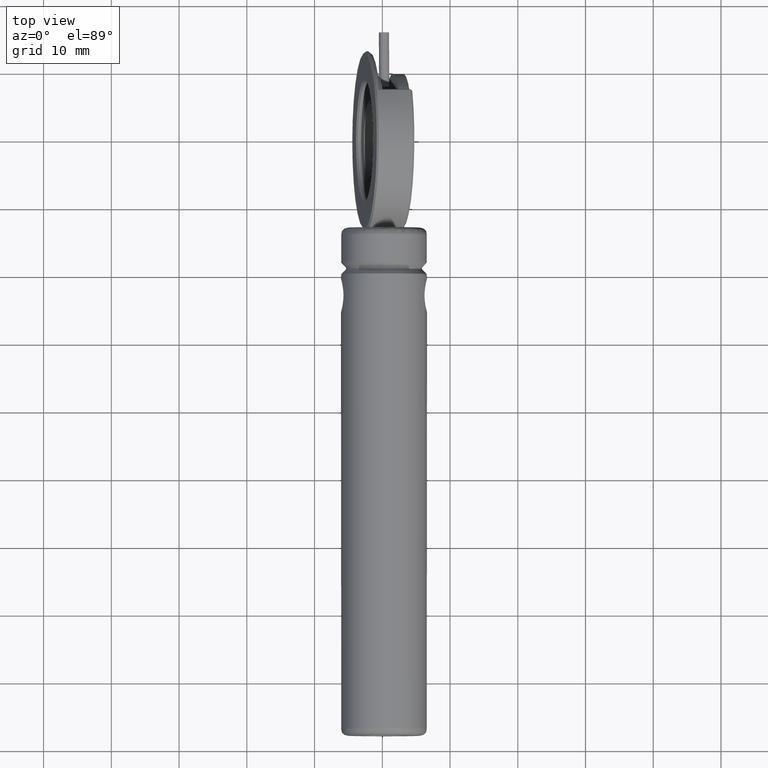
[diagram: clean part render]
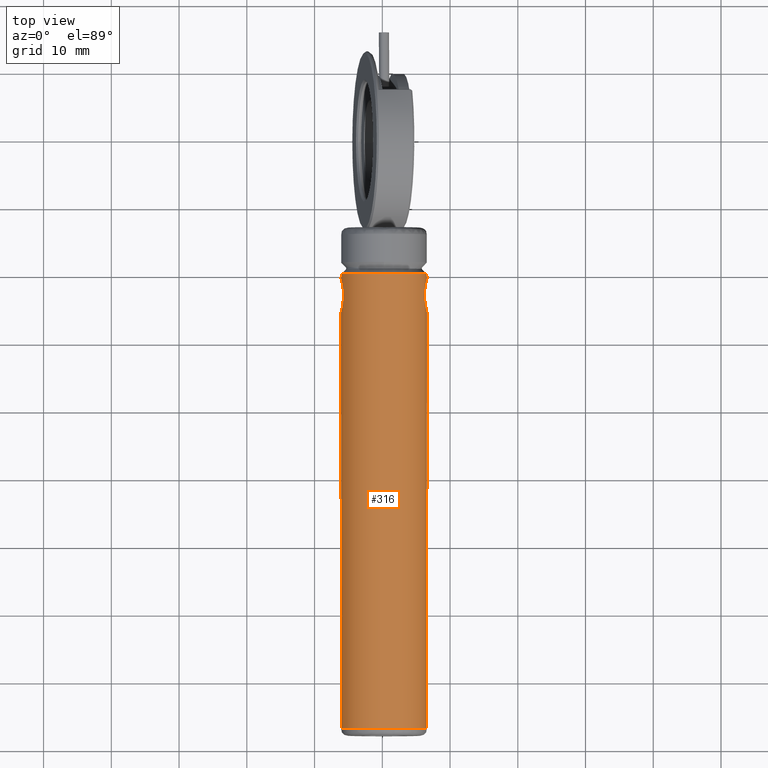
[diagram: same view with one face highlighted and labeled with its STEP entity id]
A machine part, top view. The second image highlights one B-rep face of the part: STEP entity #316.
In plain terms, the highlighted cylindrical surface (bore or boss wall) has radius 6.35 mm, axis along (-0, -1, -0).
Its self-contained STEP definition (entity closure, byte-faithful):
#19 = CARTESIAN_POINT ( 'NONE',  ( -55.95349770370444986, 29.02210091390551483, 19.38694243757856839 ) ) ;
#31 = VERTEX_POINT ( 'NONE', #1717 ) ;
#32 = ORIENTED_EDGE ( 'NONE', *, *, #687, .T. ) ;
#33 = CARTESIAN_POINT ( 'NONE',  ( -55.74895415253023145, 27.70177535754417875, 15.94214572811070418 ) ) ;
#40 = CARTESIAN_POINT ( 'NONE',  ( -56.05692047389217691, 24.75102878761379088, 18.77604103011382364 ) ) ;
#43 = CARTESIAN_POINT ( 'NONE',  ( -56.00013771908889737, 29.22252285189845011, 16.87280798669142357 ) ) ;
#76 = CARTESIAN_POINT ( 'NONE',  ( -43.54551270841827915, 25.16629738908881464, 19.38360610474585499 ) ) ;
#87 = CARTESIAN_POINT ( 'NONE',  ( -43.42560600130851611, 24.68812170509847448, 18.61633952175062490 ) ) ;
#98 = CARTESIAN_POINT ( 'NONE',  ( -43.64436787658748784, 28.54310485093863292, 19.78204878029966096 ) ) ;
#106 = CARTESIAN_POINT ( 'NONE',  ( -43.47795708950794591, 24.88573303829304351, 19.02841700811105596 ) ) ;
#108 = EDGE_CURVE ( 'NONE', #31, #31, #1231, .T. ) ;
#116 = AXIS2_PLACEMENT_3D ( 'NONE', #1961, #1060, #713 ) ;
#138 = VERTEX_POINT ( 'NONE', #765 ) ;
#162 = CARTESIAN_POINT ( 'NONE',  ( -55.99959699816394476, 29.21802960642397906, 19.15645675958402805 ) ) ;
#176 = CARTESIAN_POINT ( 'NONE',  ( -56.07379909883149338, 24.68935087469255407, 17.43265841121611714 ) ) ;
#188 = CARTESIAN_POINT ( 'NONE',  ( -56.00013771909167559, 24.96910962607035600, 19.17980413544104934 ) ) ;
#191 = CARTESIAN_POINT ( 'NONE',  ( -56.02121260531584568, 29.30365412800964720, 19.03198726080997716 ) ) ;
#197 = CARTESIAN_POINT ( 'NONE',  ( -55.85794606437300303, 25.63422731160354928, 16.27955899145761620 ) ) ;
#225 = CARTESIAN_POINT ( 'NONE',  ( -49.74987127643542806, 30.24581623896437677, 11.67630606107413804 ) ) ;
#231 = CARTESIAN_POINT ( 'NONE',  ( -43.76831793646814361, 26.78881061593457602, 15.89475272110675519 ) ) ;
#241 = CARTESIAN_POINT ( 'NONE',  ( -43.68628291746190229, 25.90218915304317093, 19.91460003448241167 ) ) ;
#244 = VERTEX_POINT ( 'NONE', #1154 ) ;
#275 = EDGE_LOOP ( 'NONE', ( #962 ) ) ;
#300 = CARTESIAN_POINT ( 'NONE',  ( -55.75280462891173983, 27.70452716160135864, 20.09704371819412216 ) ) ;
#316 = ADVANCED_FACE ( 'NONE', ( #354, #1380, #502, #1220 ), #346, .T. ) ;
#319 = CARTESIAN_POINT ( 'NONE',  ( -55.73142461640270540, 27.24973342325418102, 20.15785940104151663 ) ) ;
#339 = CARTESIAN_POINT ( 'NONE',  ( -55.92901312278439718, 25.28004879653650150, 16.56001592001667078 ) ) ;
#342 = CARTESIAN_POINT ( 'NONE',  ( -55.73142461636008704, 27.09581623896437108, 15.89475272114938065 ) ) ;
#346 = CYLINDRICAL_SURFACE ( 'NONE', #1733, 6.349999999999999645 ) ;
#354 = FACE_OUTER_BOUND ( 'NONE', #667, .T. ) ;
#367 = CARTESIAN_POINT ( 'NONE',  ( -43.42776622060254255, 29.49563133540271664, 18.63893529669634930 ) ) ;
#389 = CARTESIAN_POINT ( 'NONE',  ( -43.42767118592843900, 24.69565476322318887, 17.41471686030209298 ) ) ;
#410 = CARTESIAN_POINT ( 'NONE',  ( -43.49982703272948470, 29.21932615212613982, 16.89789884372426698 ) ) ;
#436 = CIRCLE ( 'NONE', #1227, 6.349999999999999645 ) ;
#458 = ORIENTED_EDGE ( 'NONE', *, *, #947, .T. ) ;
#466 = CARTESIAN_POINT ( 'NONE',  ( -55.81225704469007098, 28.28190471860009225, 16.13416482833923737 ) ) ;
#483 = CARTESIAN_POINT ( 'NONE',  ( -55.73142461640662759, 26.78853469835665280, 20.15785940103056362 ) ) ;
#498 = CARTESIAN_POINT ( 'NONE',  ( -55.81273324565979266, 28.28452125253767946, 19.91690377511365995 ) ) ;
#502 = FACE_BOUND ( 'NONE', #275, .T. ) ;
#504 = CARTESIAN_POINT ( 'NONE',  ( -55.73142461640659917, 26.94189905467674606, 15.89475272111770465 ) ) ;
#521 = CARTESIAN_POINT ( 'NONE',  ( -43.68762434279800999, 25.91075368746201235, 16.13372989938962121 ) ) ;
#533 = CARTESIAN_POINT ( 'NONE',  ( -43.64379427781811671, 25.64531726924878896, 16.27255785902384844 ) ) ;
#543 = CARTESIAN_POINT ( 'NONE',  ( -43.39960561069114675, 29.59675670764408650, 17.88575128877421605 ) ) ;
#545 = EDGE_CURVE ( 'NONE', #983, #983, #1766, .T. ) ;
#551 = CARTESIAN_POINT ( 'NONE',  ( -43.57044843088396391, 28.91290217577775223, 16.56118969775130623 ) ) ;
#560 = CARTESIAN_POINT ( 'NONE',  ( -43.40015722813624421, 24.59682852035051681, 17.86297151593729993 ) ) ;
#620 = CARTESIAN_POINT ( 'NONE',  ( -55.73142461636204104, 27.09581623896437108, 20.15785940099341289 ) ) ;
#625 = CARTESIAN_POINT ( 'NONE',  ( -55.85614893730186026, 28.54748676870534041, 16.27321772164965807 ) ) ;
#639 = CARTESIAN_POINT ( 'NONE',  ( -56.10006330660940677, 24.59513644781011621, 17.88260734685723818 ) ) ;
#642 = CARTESIAN_POINT ( 'NONE',  ( -55.73142461636204104, 27.09581623896437108, 20.15785940099341289 ) ) ;
#667 = EDGE_LOOP ( 'NONE', ( #995 ) ) ;
#687 = EDGE_CURVE ( 'NONE', #138, #920, #828, .T. ) ;
#706 = CARTESIAN_POINT ( 'NONE',  ( -43.56997302119285109, 25.27652616373957883, 19.48941472443759437 ) ) ;
#713 = DIRECTION ( 'NONE',  ( 0.000000000000000000, 0.000000000000000000, -1.000000000000000000 ) ) ;
#715 = CARTESIAN_POINT ( 'NONE',  ( -43.76831793646814361, 27.09581623896436753, 15.89475272110675519 ) ) ;
#723 = ORIENTED_EDGE ( 'NONE', *, *, #545, .T. ) ;
#765 = CARTESIAN_POINT ( 'NONE',  ( -55.73142461636008704, 27.09581623896437108, 15.89475272114938065 ) ) ;
#772 = CARTESIAN_POINT ( 'NONE',  ( -56.09966853040479862, 29.59509851350024334, 17.86610938808635041 ) ) ;
#777 = CARTESIAN_POINT ( 'NONE',  ( -56.05862279833920780, 24.74470223463193719, 17.29093474418573706 ) ) ;
#791 = CARTESIAN_POINT ( 'NONE',  ( -56.07379909883096047, 29.50228160328913773, 18.61995371093884089 ) ) ;
#797 = CARTESIAN_POINT ( 'NONE',  ( -55.76545029789348717, 26.33783205334371047, 15.99213601406641594 ) ) ;
#805 = CARTESIAN_POINT ( 'NONE',  ( -56.07232352696243538, 24.69473357289634663, 18.63533436751063732 ) ) ;
#826 = CARTESIAN_POINT ( 'NONE',  ( -43.75082002268597847, 26.49039398339124318, 15.94206364065842507 ) ) ;
#828 = B_SPLINE_CURVE_WITH_KNOTS ( 'NONE', 3,
 ( #342, #1084, #33, #466, #625, #1845, #43, #1101, #1549, #1376, #772, #1389, #1398, #791, #1250, #191, #162, #19, #1862, #1665, #498, #1368, #300, #1834, #319, #642 ),
 .UNSPECIFIED., .F., .F.,
 ( 4, 2, 2, 2, 2, 2, 2, 2, 2, 2, 2, 2, 4 ),
 ( 4.448761854241599968E-15, 0.0009087577897704537336, 0.001817515579536458552, 0.002726273369302463587, 0.003180652264185465997, 0.003635031159068468406, 0.004089410053951470815, 0.004543788948834472791, 0.004998167843717475634, 0.005452546738600478476, 0.006361304528366485897, 0.006815683423249495679, 0.007270062318132505461 ),
 .UNSPECIFIED. ) ;
#836 = CARTESIAN_POINT ( 'NONE',  ( -43.39960623673480455, 24.59487798651919732, 18.16659360278493907 ) ) ;
#847 = CARTESIAN_POINT ( 'NONE',  ( -43.40498312376350754, 29.57790284089205812, 17.73145414811608234 ) ) ;
#864 = CARTESIAN_POINT ( 'NONE',  ( -43.44325311323338212, 29.43900216485457833, 18.77966194833950198 ) ) ;
#914 = CARTESIAN_POINT ( 'NONE',  ( -43.75001929560951197, 27.71077670976447394, 15.94436782464227242 ) ) ;
#920 = VERTEX_POINT ( 'NONE', #620 ) ;
#934 = DIRECTION ( 'NONE',  ( -0.000000000000000000, -1.000000000000000000, -0.000000000000000000 ) ) ;
#947 = EDGE_CURVE ( 'NONE', #920, #138, #993, .T. ) ;
#953 = CARTESIAN_POINT ( 'NONE',  ( -55.81273324566345906, 25.90711122541149436, 16.13570834704630030 ) ) ;
#960 = CARTESIAN_POINT ( 'NONE',  ( -55.73142461636204104, 27.09581623896437108, 20.15785940099341289 ) ) ;
#962 = ORIENTED_EDGE ( 'NONE', *, *, #108, .T. ) ;
#983 = VERTEX_POINT ( 'NONE', #225 ) ;
#989 = CARTESIAN_POINT ( 'NONE',  ( -43.75123604515370346, 27.69592209352358836, 20.11172709598143271 ) ) ;
#993 = B_SPLINE_CURVE_WITH_KNOTS ( 'NONE', 3,
 ( #960, #483, #1224, #1395, #1554, #1530, #188, #40, #805, #1562, #1841, #639, #1080, #176, #777, #1850, #1247, #1706, #339, #197, #953, #797, #1403, #1870, #504, #1105 ),
 .UNSPECIFIED., .F., .F.,
 ( 4, 2, 2, 2, 2, 2, 2, 2, 2, 2, 2, 2, 4 ),
 ( 3.473548882839113568E-15, 0.0009087577897568757277, 0.001817515579510277889, 0.002726273369263679507, 0.003180652264140379232, 0.003635031159017079391, 0.004089410053893779116, 0.004543788948770478842, 0.004998167843647177699, 0.005452546738523877425, 0.006361304528277280344, 0.006815683423153983539, 0.007270062318030685866 ),
 .UNSPECIFIED. ) ;
#995 = ORIENTED_EDGE ( 'NONE', *, *, #1942, .T. ) ;
#998 = CARTESIAN_POINT ( 'NONE',  ( -43.76856661004525506, 27.39666030089653859, 20.15855723029797275 ) ) ;
#1008 = CARTESIAN_POINT ( 'NONE',  ( -43.44310726956013013, 24.75209177072776257, 17.27420883952871478 ) ) ;
#1053 = CARTESIAN_POINT ( 'NONE',  ( -43.76831793646814361, 27.09581623896436753, 15.89475272110675519 ) ) ;
#1060 = DIRECTION ( 'NONE',  ( -0.000000000000000000, -1.000000000000000000, -0.000000000000000000 ) ) ;
#1080 = CARTESIAN_POINT ( 'NONE',  ( -56.09461390308584328, 24.61424549691677299, 17.72844428671832162 ) ) ;
#1084 = CARTESIAN_POINT ( 'NONE',  ( -55.73142461640274092, 27.40309777957635973, 15.89475272110675164 ) ) ;
#1101 = CARTESIAN_POINT ( 'NONE',  ( -56.05692047389091215, 29.44060369036433755, 17.27657109202333530 ) ) ;
#1105 = CARTESIAN_POINT ( 'NONE',  ( -55.73142461636008704, 27.09581623896437108, 15.89475272114938065 ) ) ;
#1122 = CARTESIAN_POINT ( 'NONE',  ( -43.40609308990561743, 24.61766387052011851, 17.70892040447274951 ) ) ;
#1135 = CARTESIAN_POINT ( 'NONE',  ( -43.44068628458530412, 24.74309484823529104, 18.75796079998235655 ) ) ;
#1144 = CARTESIAN_POINT ( 'NONE',  ( -43.42569690824448969, 29.50318027016240308, 17.43523763761689338 ) ) ;
#1152 = CARTESIAN_POINT ( 'NONE',  ( -43.74958783763995029, 26.47550291231089759, 20.10701665392598869 ) ) ;
#1154 = CARTESIAN_POINT ( 'NONE',  ( -49.74987127643542806, -36.90418376103562537, 11.67630606107413804 ) ) ;
#1163 = CARTESIAN_POINT ( 'NONE',  ( -43.40015787556706783, 29.59480166563208670, 18.18991961913010513 ) ) ;
#1206 = DIRECTION ( 'NONE',  ( 0.000000000000000000, 1.000000000000000000, 0.000000000000000000 ) ) ;
#1220 = FACE_BOUND ( 'NONE', #1514, .T. ) ;
#1224 = CARTESIAN_POINT ( 'NONE',  ( -55.74895415253408970, 26.48985712039409535, 20.11046639402644232 ) ) ;
#1227 = AXIS2_PLACEMENT_3D ( 'NONE', #1239, #1206, #1663 ) ;
#1231 = B_SPLINE_CURVE_WITH_KNOTS ( 'NONE', 3,
 ( #715, #231, #826, #521, #533, #1756, #1777, #1008, #389, #1122, #560, #836, #1431, #87, #1135, #106, #1580, #76, #706, #1314, #241, #1152, #1734, #998, #989, #1442, #98, #1296, #1924, #864, #367, #1908, #1163, #543, #847, #1144, #1599, #1453, #410, #1917, #551, #1618, #1963, #914, #1517, #1053 ),
 .UNSPECIFIED., .T., .F.,
 ( 4, 2, 2, 2, 2, 2, 2, 2, 2, 2, 2, 2, 2, 2, 2, 2, 2, 2, 2, 2, 2, 2, 4 ),
 ( 0.000000000000000000, 0.0009079417880899689347, 0.001815883576179937869, 0.002723825364269906804, 0.003177796258314896909, 0.003631767152359887015, 0.004085738046404876686, 0.004539708940449867225, 0.004993679834494856896, 0.005447650728539847435, 0.006355592516629827646, 0.007263534304719807856, 0.008171476092809788067, 0.009079417880899769144, 0.009987359668989748487, 0.01044133056303474076, 0.01089530145707973130, 0.01134927235112472184, 0.01180324324516971238, 0.01225721413921470465, 0.01271118503325969519, 0.01361912682134966933, 0.01452706860943964520 ),
 .UNSPECIFIED. ) ;
#1239 = CARTESIAN_POINT ( 'NONE',  ( -49.74987127643542806, -36.90418376103562537, 18.02630606107413769 ) ) ;
#1247 = CARTESIAN_POINT ( 'NONE',  ( -55.99959699816599112, 24.97360287154766567, 16.89615536257553075 ) ) ;
#1250 = CARTESIAN_POINT ( 'NONE',  ( -56.05862279833827699, 29.44693024334757325, 18.76167737797083390 ) ) ;
#1296 = CARTESIAN_POINT ( 'NONE',  ( -43.54894696075859173, 29.02155881803948034, 19.40773354484442592 ) ) ;
#1314 = CARTESIAN_POINT ( 'NONE',  ( -43.64101145568915285, 25.62983253822849150, 19.77033854767239163 ) ) ;
#1368 = CARTESIAN_POINT ( 'NONE',  ( -55.76545029788972130, 27.85380042459814831, 20.06047610809303094 ) ) ;
#1376 = CARTESIAN_POINT ( 'NONE',  ( -56.09380344890063697, 29.57451518557373404, 17.71191374342566149 ) ) ;
#1380 = FACE_OUTER_BOUND ( 'NONE', #1730, .T. ) ;
#1389 = CARTESIAN_POINT ( 'NONE',  ( -56.10006330660944940, 29.59649603017527042, 18.17000477529169089 ) ) ;
#1395 = CARTESIAN_POINT ( 'NONE',  ( -55.81225704469402160, 25.90972775934692152, 19.91844729379646495 ) ) ;
#1398 = CARTESIAN_POINT ( 'NONE',  ( -56.09461390308577933, 29.57738698106790665, 18.32416783543263961 ) ) ;
#1403 = CARTESIAN_POINT ( 'NONE',  ( -55.75280462891554123, 26.48710531633802745, 15.95556840396519149 ) ) ;
#1431 = CARTESIAN_POINT ( 'NONE',  ( -43.40496332664119450, 24.61366080147837820, 18.32060839462238633 ) ) ;
#1442 = CARTESIAN_POINT ( 'NONE',  ( -43.68823034405662753, 28.27679695365045731, 19.92080196703908967 ) ) ;
#1453 = CARTESIAN_POINT ( 'NONE',  ( -43.47821234054593731, 29.30490167447886662, 17.02257554914513804 ) ) ;
#1514 = EDGE_LOOP ( 'NONE', ( #458, #32 ) ) ;
#1517 = CARTESIAN_POINT ( 'NONE',  ( -43.76831793646814361, 27.40282186199416259, 15.89475272110675164 ) ) ;
#1530 = CARTESIAN_POINT ( 'NONE',  ( -55.95156564380742736, 25.16672033776323048, 19.40432368473839020 ) ) ;
#1549 = CARTESIAN_POINT ( 'NONE',  ( -56.07232352696154720, 29.49689890508415857, 17.41727775462810968 ) ) ;
#1554 = CARTESIAN_POINT ( 'NONE',  ( -55.85614893730561192, 25.64414570924747494, 19.77939440048564990 ) ) ;
#1562 = CARTESIAN_POINT ( 'NONE',  ( -56.09380344890089987, 24.61711729241018531, 18.34069837871623321 ) ) ;
#1580 = CARTESIAN_POINT ( 'NONE',  ( -43.49951254905822395, 24.97103866808840067, 19.15295792752572623 ) ) ;
#1599 = CARTESIAN_POINT ( 'NONE',  ( -43.44083213640975316, 29.44800012081973151, 17.29336276290979413 ) ) ;
#1618 = CARTESIAN_POINT ( 'NONE',  ( -43.64159128548500632, 28.55859037820454205, 16.28024013993801944 ) ) ;
#1663 = DIRECTION ( 'NONE',  ( 0.000000000000000000, 0.000000000000000000, -1.000000000000000000 ) ) ;
#1665 = CARTESIAN_POINT ( 'NONE',  ( -55.85794606436947873, 28.55740516635084347, 19.77305313070295156 ) ) ;
#1680 = DIRECTION ( 'NONE',  ( 0.000000000000000000, 0.000000000000000000, -1.000000000000000000 ) ) ;
#1706 = CARTESIAN_POINT ( 'NONE',  ( -55.95349770370712150, 25.16953156406024661, 16.66566968458198161 ) ) ;
#1717 = CARTESIAN_POINT ( 'NONE',  ( -43.76831793646814361, 27.09581623896437108, 15.89475272110675164 ) ) ;
#1730 = EDGE_LOOP ( 'NONE', ( #723 ) ) ;
#1733 = AXIS2_PLACEMENT_3D ( 'NONE', #1876, #934, #1680 ) ;
#1734 = CARTESIAN_POINT ( 'NONE',  ( -43.76806383987345583, 26.78170604949085742, 20.15714635371210761 ) ) ;
#1756 = CARTESIAN_POINT ( 'NONE',  ( -43.54849023973912381, 25.16812148448601505, 16.64692855402902083 ) ) ;
#1766 = CIRCLE ( 'NONE', #116, 6.349999999999999645 ) ;
#1777 = CARTESIAN_POINT ( 'NONE',  ( -43.49995314162151061, 24.97051278248000372, 16.87100818415212089 ) ) ;
#1834 = CARTESIAN_POINT ( 'NONE',  ( -55.73581050808652293, 27.40225223421674983, 20.14566794472388622 ) ) ;
#1841 = CARTESIAN_POINT ( 'NONE',  ( -56.09966853040481993, 24.59653396448483775, 18.18650273405810580 ) ) ;
#1845 = CARTESIAN_POINT ( 'NONE',  ( -55.95156564380412334, 29.02491214019983090, 16.64828843739516984 ) ) ;
#1850 = CARTESIAN_POINT ( 'NONE',  ( -56.02121260531752256, 24.88797834996482194, 17.02062486134883557 ) ) ;
#1862 = CARTESIAN_POINT ( 'NONE',  ( -55.92901312278147685, 28.91158368142641066, 19.49259620214393607 ) ) ;
#1870 = CARTESIAN_POINT ( 'NONE',  ( -55.73581050809037407, 26.78938024371825577, 15.90694417743523559 ) ) ;
#1876 = CARTESIAN_POINT ( 'NONE',  ( -49.74987127643542806, 37.09581623896437463, 18.02630606107413769 ) ) ;
#1908 = CARTESIAN_POINT ( 'NONE',  ( -43.40611544743694594, 29.57389067401420135, 18.34425086662124826 ) ) ;
#1917 = CARTESIAN_POINT ( 'NONE',  ( -43.54594152135150864, 29.02344655340585433, 16.66703732736720056 ) ) ;
#1924 = CARTESIAN_POINT ( 'NONE',  ( -43.50027769958326473, 29.21982860198006193, 19.18345390011537432 ) ) ;
#1942 = EDGE_CURVE ( 'NONE', #244, #244, #436, .T. ) ;
#1961 = CARTESIAN_POINT ( 'NONE',  ( -49.74987127643542806, 30.24581623896437677, 18.02630606107413769 ) ) ;
#1963 = CARTESIAN_POINT ( 'NONE',  ( -43.68687305488584371, 28.28552108154487144, 16.13613591592195462 ) ) ;